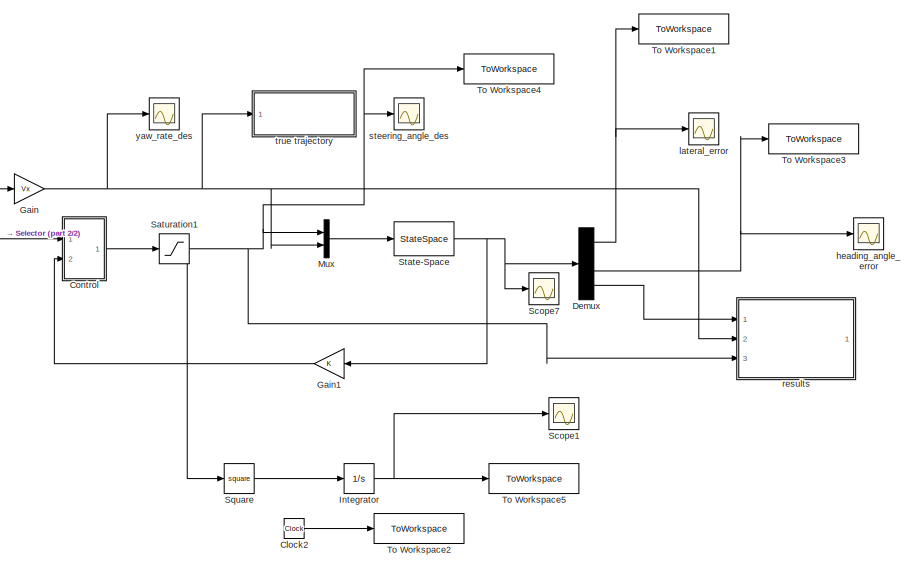
[diagram: root canvas - part 1/2, right side, full height]
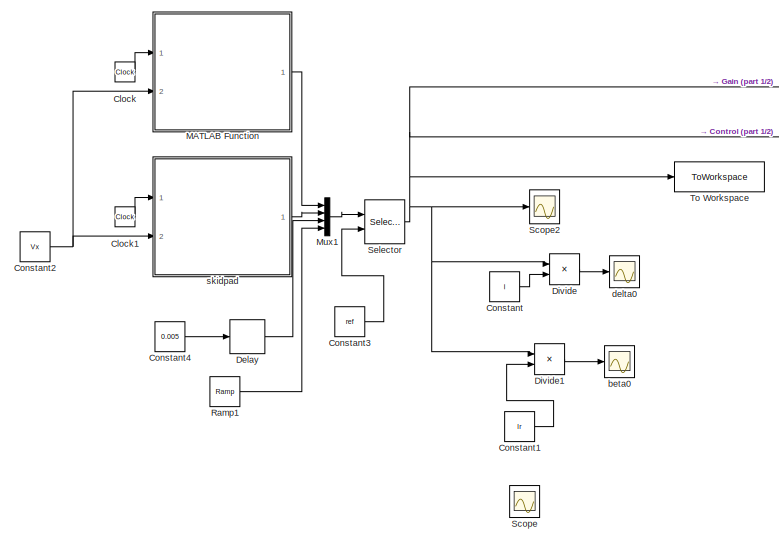
[diagram: root canvas - part 2/2, left side, full height]
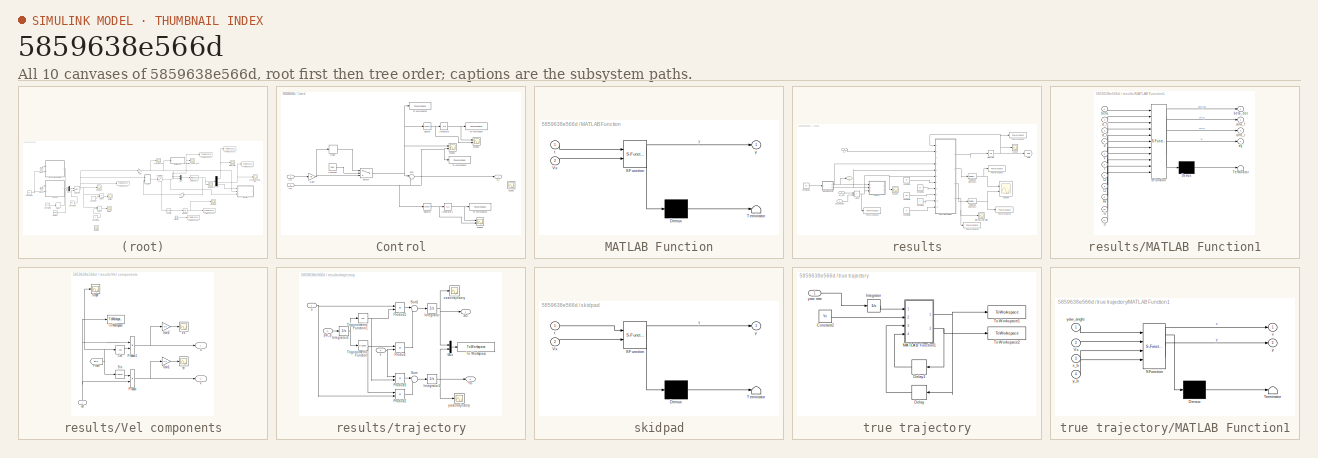
[diagram: thumbnail index - all 10 canvases of the model, root first then tree order]
MODEL slx_5859638e566d
KIND model
CONFIG AbsTol = auto
CONFIG EnableMultiTasking = off
CONFIG FixedStep = 0.001
CONFIG MaxStep = auto
CONFIG MinStep = auto
CONFIG RelTol = 1e-3
CONFIG SampleTimeConstraint = Unconstrained
CONFIG SolverName = ode4
CONFIG StartTime = 0.0
CONFIG StopTime = simtime
BLOCK [Clock] Clock
BLOCK [Clock] Clock1
BLOCK [Clock] Clock2
BLOCK [Constant] Constant
  Value = l
BLOCK [Constant] Constant1
  Value = lr
BLOCK [Constant] Constant2
  Value = Vx
BLOCK [Constant] Constant3
  Value = ref
BLOCK [Constant] Constant4
  Value = 0.005
BLOCK [SubSystem] Control
  Ports = [2, 1]
  RequestExecContextInheritance = off
BLOCK [Constant] Control/Constant
  Value = delay
BLOCK [Delay] Control/Delay
  DelayLength = 10
  InputPortMap = u0
  Ports = [1, 1]
BLOCK [Gain] Control/Gain2
  Gain = Kff
BLOCK [Inport] Control/In1
BLOCK [Inport] Control/In2
  NameLocation = top
  Port = 2
BLOCK [Integrator] Control/Integrator
  Ports = [1, 1]
BLOCK [Integrator] Control/Integrator1
  Ports = [1, 1]
BLOCK [Scope] Control/Scope
  Floating = off
  NumInputPorts = 1
  Ports = [1]
  ScopeSpecificationString = Simulink.scopes.TimeScopeBlockCfg('CurrentConfiguration', extmgr.ConfigurationSet(extmgr.Configuration('Core','General UI',true),extmgr.Configuration('Core','Source UI',true),extmgr.Configuration('Sources','WiredSimulink',true,'DataLoggingVariableName','ScopeData2'),extmgr.Configuration('Visuals','Time Domain',true,'SerializedDisplays',{struct('MinYLimReal','-1.00000','MaxYLimReal','1.00000','YLab...<+1428ch>
BLOCK [Scope] Control/Scope1
  Floating = off
  NumInputPorts = 2
  Ports = [2]
  ScopeSpecificationString = Simulink.scopes.TimeScopeBlockCfg('CurrentConfiguration', extmgr.ConfigurationSet(extmgr.Configuration('Core','General UI',true),extmgr.Configuration('Core','Source UI',true),extmgr.Configuration('Sources','WiredSimulink',true,'DataLoggingVariableName','ScopeData1'),extmgr.Configuration('Visuals','Time Domain',true,'SerializedDisplays',{struct('MinYLimReal','-0.02902','MaxYLimReal','0.02902','YLab...<+1421ch>
BLOCK [Scope] Control/Scope2
  Floating = off
  NumInputPorts = 2
  Ports = [2]
  ScopeSpecificationString = Simulink.scopes.TimeScopeBlockCfg('CurrentConfiguration', extmgr.ConfigurationSet(extmgr.Configuration('Core','General UI',true),extmgr.Configuration('Core','Source UI',true),extmgr.Configuration('Sources','WiredSimulink',true,'DataLoggingVariableName','ScopeData2'),extmgr.Configuration('Visuals','Time Domain',true,'SerializedDisplays',{struct('MinYLimReal','-0.00614','MaxYLimReal','0.05524','YLab...<+1403ch>
BLOCK [Scope] Control/Scope3
  Floating = off
  NumInputPorts = 2
  Ports = [2]
  ScopeSpecificationString = Simulink.scopes.TimeScopeBlockCfg('CurrentConfiguration', extmgr.ConfigurationSet(extmgr.Configuration('Core','General UI',true),extmgr.Configuration('Core','Source UI',true),extmgr.Configuration('Sources','WiredSimulink',true,'DataLoggingVariableName','ScopeData3'),extmgr.Configuration('Visuals','Time Domain',true,'SerializedDisplays',{struct('MinYLimReal','-0.06113','MaxYLimReal','0.55018','YLab...<+1403ch>
BLOCK [Math] Control/Square
  Operator = square
  Ports = [1, 1]
BLOCK [Math] Control/Square1
  Operator = square
  Ports = [1, 1]
BLOCK [Sum] Control/Sum
  Inputs = |+-
  Ports = [2, 1]
BLOCK [Switch] Control/Switch
  Criteria = u2 > Threshold
  InputSameDT = off
  SaturateOnIntegerOverflow = off
BLOCK [ToWorkspace] Control/To Workspace
  FixptAsFi = on
  MaxDataPoints = inf
  Ports = [1]
  SampleTime = -1
  VariableName = fw_e
BLOCK [ToWorkspace] Control/To Workspace1
  FixptAsFi = on
  MaxDataPoints = inf
  Ports = [1]
  SampleTime = -1
  VariableName = feedback
BLOCK [ToWorkspace] Control/To Workspace2
  FixptAsFi = on
  MaxDataPoints = inf
  Ports = [1]
  SampleTime = -1
  VariableName = feedforward
BLOCK [ToWorkspace] Control/To Workspace3
  FixptAsFi = on
  MaxDataPoints = inf
  Ports = [1]
  SampleTime = -1
  VariableName = fb_e
BLOCK [Outport] Control/d_f
BLOCK [Delay] Delay
  DelayLength = 5000
  InputPortMap = u0
  Ports = [1, 1]
BLOCK [Demux] Demux
  NameLocation = right
  Ports = [1, 4]
BLOCK [Product] Divide
  Ports = [2, 1]
BLOCK [Product] Divide1
  Ports = [2, 1]
BLOCK [Gain] Gain
  Gain = Vx
BLOCK [Gain] Gain1
  Gain = K
  Multiplication = Matrix(K*u) (u vector)
BLOCK [Integrator] Integrator
  Ports = [1, 1]
BLOCK [SubSystem] MATLAB Function
  ErrorFcn = Stateflow.Translate.translate
  PermitHierarchicalResolution = ExplicitOnly
  Ports = [2, 1]
  RequestExecContextInheritance = off
  SFBlockType = MATLAB Function
  TreatAsAtomicUnit = on
BLOCK [Demux] MATLAB Function/ Demux 
  Outputs = 1
  Ports = [1, 1]
BLOCK [S-Function] MATLAB Function/ SFunction 
  EnableBusSupport = on
  FunctionName = sf_sfun
  PortCounts = [2 2]
  Ports = [2, 2]
  SFcnIsStateOwnerBlock = off
  SFunctionDeploymentMode = off
  Tag = Stateflow S-Function 2
BLOCK [Terminator] MATLAB Function/ Terminator 
BLOCK [Inport] MATLAB Function/Vx
  Port = 2
BLOCK [Inport] MATLAB Function/t
BLOCK [Outport] MATLAB Function/y
BLOCK [Mux] Mux
  DisplayOption = bar
  Inputs = 2
  Ports = [2, 1]
BLOCK [Mux] Mux1
  DisplayOption = bar
  Ports = [4, 1]
BLOCK [Reference] Ramp1  REF=simulink/Sources/Ramp
  Ports = [0, 1]
  SourceBlock = simulink/Sources/Ramp
  SourceProductBaseCode = SL
  SourceType = Ramp
BLOCK [Saturate] Saturation1
  LowerLimit = -25*pi/180
  UpperLimit = 25*pi/180
BLOCK [Scope] Scope
  Floating = off
  NumInputPorts = 1
  Ports = [1]
  ScopeSpecificationString = Simulink.scopes.TimeScopeBlockCfg('CurrentConfiguration', extmgr.ConfigurationSet(extmgr.Configuration('Core','General UI',true),extmgr.Configuration('Core','Source UI',true),extmgr.Configuration('Sources','WiredSimulink',true,'DataLoggingVariableName','ScopeData2'),extmgr.Configuration('Visuals','Time Domain',true,'SerializedDisplays',{struct('MinYLimReal','-1.00000','MaxYLimReal','1.00000','YLab...<+1509ch>
BLOCK [Scope] Scope1
  Floating = off
  NumInputPorts = 1
  Ports = [1]
  ScopeSpecificationString = Simulink.scopes.TimeScopeBlockCfg('CurrentConfiguration', extmgr.ConfigurationSet(extmgr.Configuration('Core','General UI',true),extmgr.Configuration('Core','Source UI',true),extmgr.Configuration('Sources','WiredSimulink',true,'DataLoggingVariableName','ScopeData1'),extmgr.Configuration('Visuals','Time Domain',true,'SerializedDisplays',{struct('MinYLimReal','-0.00024','MaxYLimReal','0.00214','YLab...<+1394ch>
BLOCK [Scope] Scope2
  Floating = off
  NumInputPorts = 1
  Ports = [1]
  ScopeSpecificationString = Simulink.scopes.TimeScopeBlockCfg('CurrentConfiguration', extmgr.ConfigurationSet(extmgr.Configuration('Core','General UI',true),extmgr.Configuration('Core','Source UI',true),extmgr.Configuration('Sources','WiredSimulink',true,'DataLoggingVariableName','ScopeData2'),extmgr.Configuration('Visuals','Time Domain',true,'SerializedDisplays',{struct('MinYLimReal','-0.00675','MaxYLimReal','0.06075','YLab...<+1557ch>
BLOCK [Scope] Scope7
  Floating = off
  NumInputPorts = 1
  Ports = [1]
  ScopeSpecificationString = Simulink.scopes.TimeScopeBlockCfg('CurrentConfiguration', extmgr.ConfigurationSet(extmgr.Configuration('Core','General UI',true),extmgr.Configuration('Core','Source UI',true),extmgr.Configuration('Sources','WiredSimulink',true,'DataLoggingVariableName','ScopeData7'),extmgr.Configuration('Visuals','Time Domain',true,'SerializedDisplays',{struct('MinYLimReal','-13.77546','MaxYLimReal','13.77545','YL...<+1588ch>
BLOCK [Selector] Selector
  IndexOptions = Index vector (port)
  Indices = 1
  InputPortWidth = 4
  OutputSizes = 1
  Ports = [2, 1]
BLOCK [Math] Square
  Operator = square
  Ports = [1, 1]
BLOCK [StateSpace] State-Space
  A = A
  B = B
  C = C
  D = D
  InitialCondition = x0
  Ports = [1, 1]
BLOCK [ToWorkspace] To Workspace
  FixptAsFi = on
  MaxDataPoints = inf
  Ports = [1]
  SampleTime = -1
  VariableName = trajectory
BLOCK [ToWorkspace] To Workspace1
  FixptAsFi = on
  MaxDataPoints = inf
  Ports = [1]
  SampleTime = -1
  VariableName = lateral_deviation
BLOCK [ToWorkspace] To Workspace2
  FixptAsFi = on
  MaxDataPoints = inf
  Ports = [1]
  SampleTime = -1
  VariableName = time
BLOCK [ToWorkspace] To Workspace3
  FixptAsFi = on
  MaxDataPoints = inf
  Ports = [1]
  SampleTime = -1
  VariableName = heading_angle_error
BLOCK [ToWorkspace] To Workspace4
  FixptAsFi = on
  MaxDataPoints = inf
  Ports = [1]
  SampleTime = -1
  VariableName = delta_des
BLOCK [ToWorkspace] To Workspace5
  FixptAsFi = on
  MaxDataPoints = inf
  Ports = [1]
  SampleTime = -1
  VariableName = energy
BLOCK [Scope] beta0
  Floating = off
  NumInputPorts = 1
  Ports = [1]
  ScopeSpecificationString = Simulink.scopes.TimeScopeBlockCfg('CurrentConfiguration', extmgr.ConfigurationSet(extmgr.Configuration('Core','General UI',true),extmgr.Configuration('Core','Source UI',true),extmgr.Configuration('Sources','WiredSimulink',true,'DataLoggingVariableName','ScopeData3'),extmgr.Configuration('Visuals','Time Domain',true,'SerializedDisplays',{struct('MinYLimReal','-0.00375','MaxYLimReal','0.00375','YLab...<+1391ch>
BLOCK [Scope] delta0
  Floating = off
  NumInputPorts = 1
  Ports = [1]
  ScopeSpecificationString = Simulink.scopes.TimeScopeBlockCfg('CurrentConfiguration', extmgr.ConfigurationSet(extmgr.Configuration('Core','General UI',true),extmgr.Configuration('Core','Source UI',true),extmgr.Configuration('Sources','WiredSimulink',true,'DataLoggingVariableName','ScopeData2'),extmgr.Configuration('Visuals','Time Domain',true,'SerializedDisplays',{struct('MinYLimReal','-0.007','MaxYLimReal','0.007','YLabelRe...<+1353ch>
BLOCK [Scope] heading_angle_error
  Floating = off
  NumInputPorts = 1
  Ports = [1]
  ScopeSpecificationString = Simulink.scopes.TimeScopeBlockCfg('CurrentConfiguration', extmgr.ConfigurationSet(extmgr.Configuration('Core','General UI',true),extmgr.Configuration('Core','Source UI',true),extmgr.Configuration('Sources','WiredSimulink',true,'DataLoggingVariableName','ScopeData4'),extmgr.Configuration('Visuals','Time Domain',true,'SerializedDisplays',{struct('MinYLimReal','-0.00419','MaxYLimReal','0.00419','YLab...<+1391ch>
BLOCK [Scope] lateral_error
  Floating = off
  NumInputPorts = 1
  Ports = [1]
  ScopeSpecificationString = Simulink.scopes.TimeScopeBlockCfg('CurrentConfiguration', extmgr.ConfigurationSet(extmgr.Configuration('Core','General UI',true),extmgr.Configuration('Core','Source UI',true),extmgr.Configuration('Sources','WiredSimulink',true,'DataLoggingVariableName','ScopeData3'),extmgr.Configuration('Visuals','Time Domain',true,'SerializedDisplays',{struct('MinYLimReal','-0.000047','MaxYLimReal','0.000047','YL...<+1426ch>
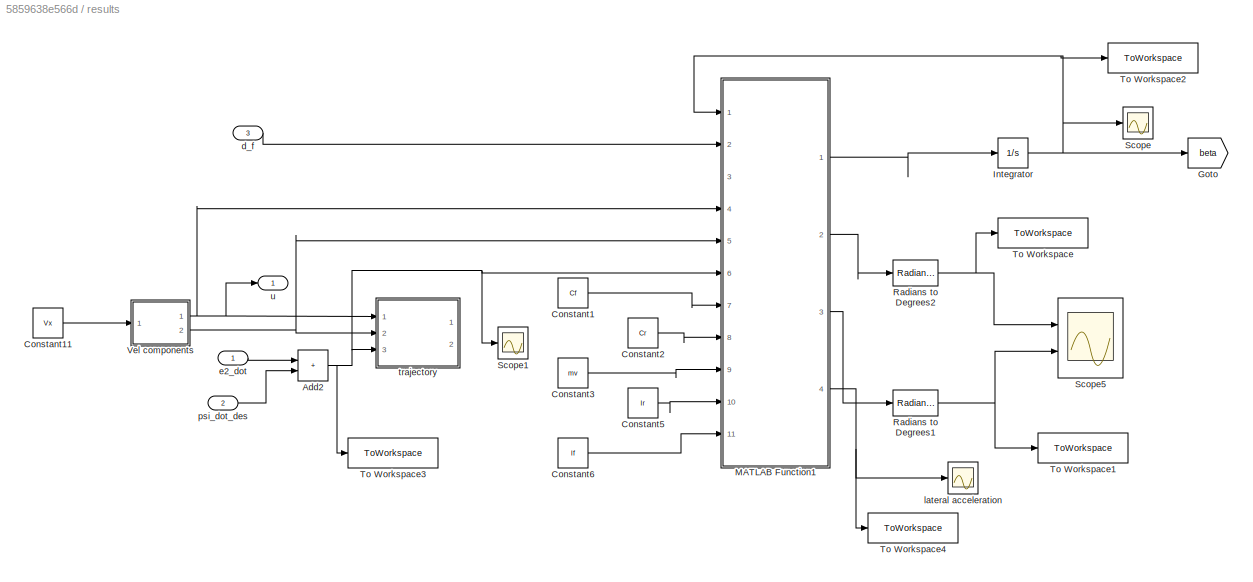
BLOCK [SubSystem] results
  Ports = [3, 1]
  RequestExecContextInheritance = off
BLOCK [Sum] results/Add2
  IconShape = rectangular
  Ports = [2, 1]
BLOCK [Constant] results/Constant1
  Value = Cf
BLOCK [Constant] results/Constant11
  Value = Vx
BLOCK [Constant] results/Constant2
  Value = Cr
BLOCK [Constant] results/Constant3
  Value = mv
BLOCK [Constant] results/Constant5
  Value = lr
BLOCK [Constant] results/Constant6
  Value = lf
BLOCK [Goto] results/Goto
  GotoTag = beta
  TagVisibility = global
BLOCK [Integrator] results/Integrator
  Ports = [1, 1]
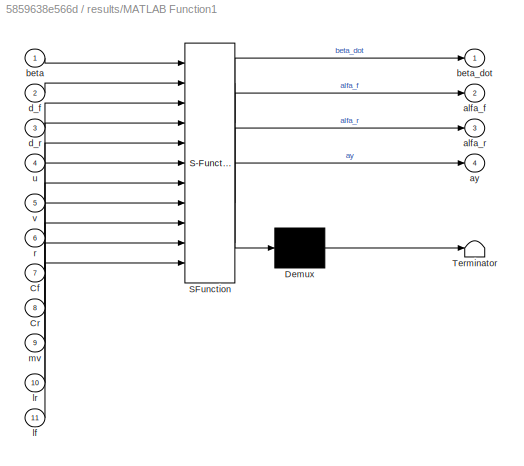
BLOCK [SubSystem] results/MATLAB Function1
  ErrorFcn = Stateflow.Translate.translate
  PermitHierarchicalResolution = ExplicitOnly
  Ports = [11, 4]
  RequestExecContextInheritance = off
  SFBlockType = MATLAB Function
  TreatAsAtomicUnit = on
BLOCK [Demux] results/MATLAB Function1/ Demux 
  Outputs = 1
  Ports = [1, 1]
BLOCK [S-Function] results/MATLAB Function1/ SFunction 
  EnableBusSupport = on
  FunctionName = sf_sfun
  PortCounts = [11 5]
  Ports = [11, 5]
  SFcnIsStateOwnerBlock = off
  SFunctionDeploymentMode = off
  Tag = Stateflow S-Function 1
BLOCK [Terminator] results/MATLAB Function1/ Terminator 
BLOCK [Inport] results/MATLAB Function1/Cf
  Port = 7
BLOCK [Inport] results/MATLAB Function1/Cr
  Port = 8
BLOCK [Outport] results/MATLAB Function1/alfa_f
  Port = 2
BLOCK [Outport] results/MATLAB Function1/alfa_r
  Port = 3
BLOCK [Outport] results/MATLAB Function1/ay
  Port = 4
BLOCK [Inport] results/MATLAB Function1/beta
BLOCK [Outport] results/MATLAB Function1/beta_dot
BLOCK [Inport] results/MATLAB Function1/d_f
  Port = 2
BLOCK [Inport] results/MATLAB Function1/d_r
  Port = 3
BLOCK [Inport] results/MATLAB Function1/lf
  Port = 11
BLOCK [Inport] results/MATLAB Function1/lr
  Port = 10
BLOCK [Inport] results/MATLAB Function1/mv
  Port = 9
BLOCK [Inport] results/MATLAB Function1/r
  Port = 6
BLOCK [Inport] results/MATLAB Function1/u
  Port = 4
BLOCK [Inport] results/MATLAB Function1/v
  Port = 5
BLOCK [Reference] results/Radians to Degrees1  REF=simulink_extras/Transformations/Radians
to Degrees
  Ports = [1, 1]
  SourceBlock = simulink_extras/Transformations/Radians\nto Degrees
  SourceProductBaseCode = SL
  SourceType = RadiansToDegrees
BLOCK [Reference] results/Radians to Degrees2  REF=simulink_extras/Transformations/Radians
to Degrees
  Ports = [1, 1]
  SourceBlock = simulink_extras/Transformations/Radians\nto Degrees
  SourceProductBaseCode = SL
  SourceType = RadiansToDegrees
BLOCK [Scope] results/Scope
  Floating = off
  NumInputPorts = 1
  Ports = [1]
  ScopeSpecificationString = Simulink.scopes.TimeScopeBlockCfg('CurrentConfiguration', extmgr.ConfigurationSet(extmgr.Configuration('Core','General UI',true),extmgr.Configuration('Core','Source UI',true),extmgr.Configuration('Sources','WiredSimulink',true,'DataLoggingVariableName','ScopeData1'),extmgr.Configuration('Visuals','Time Domain',true,'SerializedDisplays',{struct('MinYLimReal','-0.10035','MaxYLimReal','0.01115','YLab...<+1441ch>
BLOCK [Scope] results/Scope1
  Floating = off
  NumInputPorts = 1
  Ports = [1]
  ScopeSpecificationString = Simulink.scopes.TimeScopeBlockCfg('CurrentConfiguration', extmgr.ConfigurationSet(extmgr.Configuration('Core','General UI',true),extmgr.Configuration('Core','Source UI',true),extmgr.Configuration('Sources','WiredSimulink',true,'DataLoggingVariableName','ScopeData1'),extmgr.Configuration('Visuals','Time Domain',true,'SerializedDisplays',{struct('MinYLimReal','-1.70615','MaxYLimReal','1.70538','YLab...<+1396ch>
BLOCK [Scope] results/Scope5
  Floating = off
  NumInputPorts = 2
  Ports = [2]
  ScopeSpecificationString = Simulink.scopes.TimeScopeBlockCfg('CurrentConfiguration', extmgr.ConfigurationSet(extmgr.Configuration('Core','General UI',true),extmgr.Configuration('Core','Source UI',true),extmgr.Configuration('Sources','WiredSimulink',true,'DataLoggingVariableName','ScopeData2'),extmgr.Configuration('Visuals','Time Domain',true,'SerializedDisplays',{struct('MinYLimReal','-1.3357','MaxYLimReal','12.02131','YLab...<+1517ch>
BLOCK [ToWorkspace] results/To Workspace
  FixptAsFi = on
  MaxDataPoints = inf
  Ports = [1]
  SampleTime = -1
  VariableName = alfa_front
BLOCK [ToWorkspace] results/To Workspace1
  FixptAsFi = on
  MaxDataPoints = inf
  Ports = [1]
  SampleTime = -1
  VariableName = alfa_rear
BLOCK [ToWorkspace] results/To Workspace2
  FixptAsFi = on
  MaxDataPoints = inf
  Ports = [1]
  SampleTime = -1
  VariableName = beta
BLOCK [ToWorkspace] results/To Workspace3
  FixptAsFi = on
  MaxDataPoints = inf
  Ports = [1]
  SampleTime = -1
  VariableName = yaw_rate
BLOCK [ToWorkspace] results/To Workspace4
  FixptAsFi = on
  MaxDataPoints = inf
  Ports = [1]
  SampleTime = -1
  VariableName = lateral_acceleration
BLOCK [SubSystem] results/Vel components
  Ports = [1, 2]
  RequestExecContextInheritance = off
BLOCK [Trigonometry] results/Vel components/Cos
  Operator = cos
  Ports = [1, 1]
BLOCK [From] results/Vel components/From
  GotoTag = beta
  TagVisibility = global
BLOCK [Gain] results/Vel components/Gain1
  Gain = 3.6
BLOCK [Gain] results/Vel components/Gain2
  Gain = 3.6
BLOCK [Product] results/Vel components/Product
  Ports = [2, 1]
BLOCK [Product] results/Vel components/Product1
  Ports = [2, 1]
BLOCK [Scope] results/Vel components/Scope
  Floating = off
  NumInputPorts = 1
  Ports = [1]
  ScopeSpecificationString = Simulink.scopes.TimeScopeBlockCfg('CurrentConfiguration', extmgr.ConfigurationSet(extmgr.Configuration('Core','General UI',true),extmgr.Configuration('Core','Source UI',true),extmgr.Configuration('Sources','WiredSimulink',true,'DataLoggingVariableName','ScopeData2'),extmgr.Configuration('Visuals','Time Domain',true,'SerializedDisplays',{struct('MinYLimReal','-0.00234','MaxYLimReal','0.0211','YLabe...<+1509ch>
BLOCK [Trigonometry] results/Vel components/Sin
  Ports = [1, 1]
BLOCK [ToWorkspace] results/Vel components/To Workspace
  FixptAsFi = on
  MaxDataPoints = inf
  Ports = [1]
  SampleTime = -1
  SaveFormat = Timeseries
  VariableName = simout
BLOCK [Scope] results/Vel components/Vx
  Floating = off
  NumInputPorts = 1
  Ports = [1]
  ScopeSpecificationString = Simulink.scopes.TimeScopeBlockCfg('CurrentConfiguration', extmgr.ConfigurationSet(extmgr.Configuration('Core','General UI',true),extmgr.Configuration('Core','Source UI',true),extmgr.Configuration('Sources','WiredSimulink',true,'DataLoggingVariableName','ScopeData3'),extmgr.Configuration('Visuals','Time Domain',true,'SerializedDisplays',{struct('MinYLimReal','49.99011','MaxYLimReal','50.0011','YLab...<+1541ch>
BLOCK [Outport] results/Vel components/u
  VectorParamsAs1DForOutWhenUnconnected = off
BLOCK [Outport] results/Vel components/v
  Port = 2
  VectorParamsAs1DForOutWhenUnconnected = off
BLOCK [Inport] results/Vel components/vel
  NameLocation = right
BLOCK [Scope] results/Vel components/vy
  Floating = off
  NumInputPorts = 1
  Ports = [1]
  ScopeSpecificationString = Simulink.scopes.TimeScopeBlockCfg('CurrentConfiguration', extmgr.ConfigurationSet(extmgr.Configuration('Core','General UI',true),extmgr.Configuration('Core','Source UI',true),extmgr.Configuration('Sources','WiredSimulink',true,'DataLoggingVariableName','v','DataLogging',true,'DataLoggingSaveFormat','Array'),extmgr.Configuration('Visuals','Time Domain',true,'SerializedDisplays',{struct('MinYLimReal...<+1435ch>
BLOCK [Inport] results/d_f
  Port = 3
BLOCK [Inport] results/e2_dot
BLOCK [Scope] results/lateral acceleration
  Floating = off
  NumInputPorts = 1
  Ports = [1]
  ScopeSpecificationString = Simulink.scopes.TimeScopeBlockCfg('CurrentConfiguration', extmgr.ConfigurationSet(extmgr.Configuration('Core','General UI',true),extmgr.Configuration('Core','Source UI',true),extmgr.Configuration('Sources','WiredSimulink',true,'DataLoggingVariableName','ScopeData4'),extmgr.Configuration('Visuals','Time Domain',true,'SerializedDisplays',{struct('MinYLimReal','-0.16727','MaxYLimReal','0.16731','YLab...<+1403ch>
BLOCK [Inport] results/psi_dot_des
  Port = 2
BLOCK [SubSystem] results/trajectory
  Ports = [3, 2]
  RequestExecContextInheritance = off
BLOCK [Integrator] results/trajectory/Integrator
  Ports = [1, 1]
BLOCK [Integrator] results/trajectory/Integrator1
  Ports = [1, 1]
BLOCK [Integrator] results/trajectory/Integrator2
  Ports = [1, 1]
BLOCK [Mux] results/trajectory/Mux
  DisplayOption = bar
  Inputs = 2
  Ports = [2, 1]
BLOCK [Product] results/trajectory/Product
  InputSameDT = on
  OutDataTypeStr = Inherit: Same as first input
  Ports = [2, 1]
  SaturateOnIntegerOverflow = on
BLOCK [Product] results/trajectory/Product1
  InputSameDT = on
  OutDataTypeStr = Inherit: Same as first input
  Ports = [2, 1]
  SaturateOnIntegerOverflow = on
BLOCK [Product] results/trajectory/Product2
  InputSameDT = on
  OutDataTypeStr = Inherit: Same as first input
  Ports = [2, 1]
  SaturateOnIntegerOverflow = on
BLOCK [Product] results/trajectory/Product3
  InputSameDT = on
  OutDataTypeStr = Inherit: Same as first input
  Ports = [2, 1]
  SaturateOnIntegerOverflow = on
BLOCK [Sum] results/trajectory/Sum
  InputSameDT = on
  Inputs = |++
  OutDataTypeStr = Inherit: Same as first input
  Ports = [2, 1]
  SaturateOnIntegerOverflow = on
BLOCK [Sum] results/trajectory/Sum1
  InputSameDT = on
  Inputs = |+-
  OutDataTypeStr = Inherit: Same as first input
  Ports = [2, 1]
  SaturateOnIntegerOverflow = on
BLOCK [ToWorkspace] results/trajectory/To Workspace
  InitFcn = ParentName = get_param(gcb,'Parent');                                              \ncont = max(find(ParentName=='/'));                                                 \nset_param(gcb,'VariableName',strcat('Var_',ParentName(cont+1:length(ParentName))));\nclear ParentName cont
  MaxDataPoints = inf
  Ports = [1]
  SampleTime = -1
  Save2DSignal = 2-D array (concatenate along first dimension)
  VariableName = Var_trajectory
BLOCK [Trigonometry] results/trajectory/Trigonometric Function
  Ports = [1, 1]
BLOCK [Trigonometry] results/trajectory/Trigonometric Function1
  Operator = cos
  Ports = [1, 1]
BLOCK [Outport] results/trajectory/XG
  VectorParamsAs1DForOutWhenUnconnected = off
BLOCK [Outport] results/trajectory/YG
  Port = 2
  VectorParamsAs1DForOutWhenUnconnected = off
BLOCK [Inport] results/trajectory/psi_p
  Port = 3
BLOCK [Inport] results/trajectory/u
BLOCK [Inport] results/trajectory/v
  Port = 2
BLOCK [Scope] results/trajectory/x axis trajectory
  Floating = off
  NumInputPorts = 1
  Ports = [1]
  ScopeSpecificationString = Simulink.scopes.TimeScopeBlockCfg('CurrentConfiguration', extmgr.ConfigurationSet(extmgr.Configuration('Core','General UI',true),extmgr.Configuration('Core','Source UI',true),extmgr.Configuration('Sources','WiredSimulink',true,'DataLoggingVariableName','x_traiettoria','DataLoggingSaveFormat','Array','DataLoggingDecimation','1','DataLoggingDecimateData',true),extmgr.Configuration('Visuals','Time Do...<+1773ch>
BLOCK [Scope] results/trajectory/y axis trajectory
  Floating = off
  NumInputPorts = 1
  Ports = [1]
  ScopeSpecificationString = Simulink.scopes.TimeScopeBlockCfg('CurrentConfiguration', extmgr.ConfigurationSet(extmgr.Configuration('Core','General UI',true),extmgr.Configuration('Core','Source UI',true),extmgr.Configuration('Sources','WiredSimulink',true,'DataLoggingVariableName','y_traiettoria','DataLoggingSaveFormat','Array','DataLoggingDecimation','1','DataLoggingDecimateData',true),extmgr.Configuration('Visuals','Time Do...<+1669ch>
BLOCK [Outport] results/u
BLOCK [SubSystem] skidpad
  ErrorFcn = Stateflow.Translate.translate
  PermitHierarchicalResolution = ExplicitOnly
  Ports = [2, 1]
  RequestExecContextInheritance = off
  SFBlockType = MATLAB Function
  TreatAsAtomicUnit = on
BLOCK [Demux] skidpad/ Demux 
  Outputs = 1
  Ports = [1, 1]
BLOCK [S-Function] skidpad/ SFunction 
  EnableBusSupport = on
  FunctionName = sf_sfun
  PortCounts = [2 2]
  Ports = [2, 2]
  SFcnIsStateOwnerBlock = off
  SFunctionDeploymentMode = off
  Tag = Stateflow S-Function 4
BLOCK [Terminator] skidpad/ Terminator 
BLOCK [Inport] skidpad/Vx
  Port = 2
BLOCK [Inport] skidpad/t
BLOCK [Outport] skidpad/y
BLOCK [Scope] steering_angle_des
  Floating = off
  NumInputPorts = 1
  Ports = [1]
  ScopeSpecificationString = Simulink.scopes.TimeScopeBlockCfg('CurrentConfiguration', extmgr.ConfigurationSet(extmgr.Configuration('Core','General UI',true),extmgr.Configuration('Core','Source UI',true),extmgr.Configuration('Sources','WiredSimulink',true,'DataLoggingVariableName','ScopeData1'),extmgr.Configuration('Visuals','Time Domain',true,'SerializedDisplays',{struct('MinYLimReal','-0.05454','MaxYLimReal','0.49087','YLab...<+1445ch>
BLOCK [SubSystem] true trajectory
  Ports = [1]
  RequestExecContextInheritance = off
BLOCK [Constant] true trajectory/Constant2
  Value = Vx
BLOCK [Delay] true trajectory/Delay
  DelayLength = 1
  InputPortMap = u0
  Ports = [1, 1]
BLOCK [Delay] true trajectory/Delay1
  DelayLength = 1
  InputPortMap = u0
  Ports = [1, 1]
BLOCK [Integrator] true trajectory/Integrator
  Ports = [1, 1]
BLOCK [SubSystem] true trajectory/MATLAB Function1
  ErrorFcn = Stateflow.Translate.translate
  PermitHierarchicalResolution = ExplicitOnly
  Ports = [4, 2]
  RequestExecContextInheritance = off
  SFBlockType = MATLAB Function
  TreatAsAtomicUnit = on
BLOCK [Demux] true trajectory/MATLAB Function1/ Demux 
  Outputs = 1
  Ports = [1, 1]
BLOCK [S-Function] true trajectory/MATLAB Function1/ SFunction 
  EnableBusSupport = on
  FunctionName = sf_sfun
  PortCounts = [4 3]
  Ports = [4, 3]
  SFcnIsStateOwnerBlock = off
  SFunctionDeploymentMode = off
  Tag = Stateflow S-Function 3
BLOCK [Terminator] true trajectory/MATLAB Function1/ Terminator 
BLOCK [Inport] true trajectory/MATLAB Function1/Vx
  Port = 2
BLOCK [Outport] true trajectory/MATLAB Function1/x
BLOCK [Inport] true trajectory/MATLAB Function1/x_b
  Port = 3
BLOCK [Outport] true trajectory/MATLAB Function1/y
  Port = 2
BLOCK [Inport] true trajectory/MATLAB Function1/y_b
  Port = 4
BLOCK [Inport] true trajectory/MATLAB Function1/yaw_angle
BLOCK [ToWorkspace] true trajectory/To Workspace1
  FixptAsFi = on
  MaxDataPoints = inf
  Ports = [1]
  SampleTime = -1
  VariableName = x
BLOCK [ToWorkspace] true trajectory/To Workspace2
  FixptAsFi = on
  MaxDataPoints = inf
  Ports = [1]
  SampleTime = -1
  VariableName = y
BLOCK [Inport] true trajectory/yaw rate
BLOCK [Scope] yaw_rate_des
  Floating = off
  NumInputPorts = 1
  Ports = [1]
  ScopeSpecificationString = Simulink.scopes.TimeScopeBlockCfg('CurrentConfiguration', extmgr.ConfigurationSet(extmgr.Configuration('Core','General UI',true),extmgr.Configuration('Core','Source UI',true),extmgr.Configuration('Sources','WiredSimulink',true,'DataLoggingVariableName','ScopeData2'),extmgr.Configuration('Visuals','Time Domain',true,'SerializedDisplays',{struct('MinYLimReal','-0.09028','MaxYLimReal','0.09028','YLab...<+1507ch>
LINE Clock1:1 -> skidpad:1
LINE Clock2:1 -> To Workspace2:1
LINE Clock:1 -> MATLAB Function:1
LINE Constant1:1 -> Divide1:2
NET Constant2:1 -> MATLAB Function:2, skidpad:2
LINE Constant3:1 -> Selector:2
LINE Constant4:1 -> Delay:1
LINE Constant:1 -> Divide:2
LINE Control/Constant:1 -> Control/Switch:2
LINE Control/Delay:1 -> Control/Switch:1
NET Control/Gain2:1 -> Control/Delay:1, Control/Switch:3
LINE Control/In1:1 -> Control/Gain2:1
NET Control/In2:1 -> Control/Scope1:2, Control/Square1:1, Control/Sum:2, Control/To Workspace1:1
NET Control/Integrator1:1 -> Control/Scope3:1, Control/To Workspace3:1
NET Control/Integrator:1 -> Control/Scope2:1, Control/To Workspace:1
NET Control/Square1:1 -> Control/Integrator1:1, Control/Scope3:2
NET Control/Square:1 -> Control/Integrator:1, Control/Scope2:2
LINE Control/Sum:1 -> Control/d_f:1
NET Control/Switch:1 -> Control/Scope1:1, Control/Square:1, Control/Sum:1, Control/To Workspace2:1
LINE Control:1 -> Saturation1:1
LINE Delay:1 -> Mux1:3
NET Demux:1 -> To Workspace1:1, lateral_error:1
NET Demux:3 -> To Workspace3:1, heading_angle_error:1
LINE Demux:4 -> results:1
LINE Divide1:1 -> beta0:1
LINE Divide:1 -> delta0:1
LINE Gain1:1 -> Control:2
NET Gain:1 -> Mux:2, results:2, true trajectory:1, yaw_rate_des:1
NET Integrator:1 -> Scope1:1, To Workspace5:1
LINE MATLAB Function:1 -> Mux1:1
LINE Mux1:1 -> Selector:1
LINE Mux:1 -> State-Space:1
LINE Ramp1:1 -> Mux1:4
NET Saturation1:1 -> Mux:1, Square:1, To Workspace4:1, results:3, steering_angle_des:1
NET Selector:1 -> Control:1, Divide1:1, Divide:1, Gain:1, Scope2:1, To Workspace:1
LINE Square:1 -> Integrator:1
NET State-Space:1 -> Demux:1, Gain1:1, Scope7:1
NET results/Add2:1 -> results/MATLAB Function1:6, results/Scope1:1, results/To Workspace3:1, results/trajectory:3
LINE results/Constant11:1 -> results/Vel components:1
LINE results/Constant1:1 -> results/MATLAB Function1:7
LINE results/Constant2:1 -> results/MATLAB Function1:8
LINE results/Constant3:1 -> results/MATLAB Function1:9
LINE results/Constant5:1 -> results/MATLAB Function1:10
LINE results/Constant6:1 -> results/MATLAB Function1:11
NET results/Integrator:1 -> results/Goto:1, results/MATLAB Function1:1, results/Scope:1, results/To Workspace2:1
LINE results/MATLAB Function1:1 -> results/Integrator:1
LINE results/MATLAB Function1:2 -> results/Radians to Degrees2:1
LINE results/MATLAB Function1:3 -> results/Radians to Degrees1:1
NET results/MATLAB Function1:4 -> results/To Workspace4:1, results/lateral acceleration:1
NET results/Radians to Degrees1:1 -> results/Scope5:2, results/To Workspace1:1
NET results/Radians to Degrees2:1 -> results/Scope5:1, results/To Workspace:1
LINE results/Vel components/Cos:1 -> results/Vel components/Product1:2
NET results/Vel components/From:1 -> results/Vel components/Cos:1, results/Vel components/Scope:1, results/Vel components/Sin:1
LINE results/Vel components/Gain1:1 -> results/Vel components/vy:1
LINE results/Vel components/Gain2:1 -> results/Vel components/Vx:1
NET results/Vel components/Product1:1 -> results/Vel components/Gain2:1, results/Vel components/u:1
NET results/Vel components/Product:1 -> results/Vel components/Gain1:1, results/Vel components/v:1
LINE results/Vel components/Sin:1 -> results/Vel components/Product:1
NET results/Vel components/vel:1 -> results/Vel components/Product1:1, results/Vel components/Product:2, results/Vel components/To Workspace:1
NET results/Vel components:1 -> results/MATLAB Function1:4, results/trajectory:1, results/u:1
NET results/Vel components:2 -> results/MATLAB Function1:5, results/trajectory:2
LINE results/d_f:1 -> results/MATLAB Function1:2
LINE results/e2_dot:1 -> results/Add2:1
LINE results/psi_dot_des:1 -> results/Add2:2
NET results/trajectory/Integrator1:1 -> results/trajectory/Mux:2, results/trajectory/YG:1, results/trajectory/y axis trajectory:1
NET results/trajectory/Integrator2:1 -> results/trajectory/Trigonometric Function1:1, results/trajectory/Trigonometric Function:1
NET results/trajectory/Integrator:1 -> results/trajectory/Mux:1, results/trajectory/XG:1, results/trajectory/x axis trajectory:1
LINE results/trajectory/Mux:1 -> results/trajectory/To Workspace:1
LINE results/trajectory/Product1:1 -> results/trajectory/Sum1:1
LINE results/trajectory/Product2:1 -> results/trajectory/Sum:2
LINE results/trajectory/Product3:1 -> results/trajectory/Sum:1
LINE results/trajectory/Product:1 -> results/trajectory/Sum1:2
LINE results/trajectory/Sum1:1 -> results/trajectory/Integrator:1
LINE results/trajectory/Sum:1 -> results/trajectory/Integrator1:1
NET results/trajectory/Trigonometric Function1:1 -> results/trajectory/Product1:2, results/trajectory/Product3:2
NET results/trajectory/Trigonometric Function:1 -> results/trajectory/Product2:1, results/trajectory/Product:1
LINE results/trajectory/psi_p:1 -> results/trajectory/Integrator2:1
NET results/trajectory/u:1 -> results/trajectory/Product1:1, results/trajectory/Product2:2
NET results/trajectory/v:1 -> results/trajectory/Product3:1, results/trajectory/Product:2
LINE skidpad:1 -> Mux1:2
LINE true trajectory/Constant2:1 -> true trajectory/MATLAB Function1:2
LINE true trajectory/Delay1:1 -> true trajectory/MATLAB Function1:4
LINE true trajectory/Delay:1 -> true trajectory/MATLAB Function1:3
LINE true trajectory/Integrator:1 -> true trajectory/MATLAB Function1:1
NET true trajectory/MATLAB Function1:1 -> true trajectory/Delay:1, true trajectory/To Workspace1:1
NET true trajectory/MATLAB Function1:2 -> true trajectory/Delay1:1, true trajectory/To Workspace2:1
LINE true trajectory/yaw rate:1 -> true trajectory/Integrator:1
note: NET lines group one-source signal fan-out (src -> all destinations, sorted); 1:1 wires keep LINE
CHART results/MATLAB Function1 states=1 transitions=1
  STATE_LABEL 'eML_blk_kernel()'
  STATE_LABEL 'SCRIPT:\nfunction [beta_dot, alfa_f, alfa_r, ay] = fcn(beta,d_f,d_r,u,v,r,Cf,Cr,mv,lr,lf)\nl = lr+lf; % total wheelbase\n\nbeta_dot = (-Cf - Cr)/(mv*u)*beta + (-Cf*lf + Cr*lr - mv*u^2)/(mv*u^2)*r + (Cf*d_f - Cr*d_r)/(mv*u);\nalfa_f = -beta - (lf*r)/u + d_f;\nalfa_r = - beta + (lr*r)/u + d_r;\n%ay = -(Cf+Cr)/(mv*u)*v+(Cr*lr-Cf*lf-mv*u^2)/(mv*u)*r+Cf*d_f/mv;\nay = u*r;'
CHART MATLAB Function states=1 transitions=1
  STATE_LABEL 'eML_blk_kernel()'
  STATE_LABEL 'SCRIPT:\nfunction y = fcn(t, Vx)\ny = 0;\nlow = 0.002;\n\ncoeff=(80/3.6)/Vx;\nt1=27*coeff;\nif t <= t1\n    y = 0;\nend\nif t >= t1\n    y=(t-t1)*low/-(10*coeff);\nend\nt2=t1+(10*coeff);\nif t >= t2\n    y = -low;\nend\nt3=t2+(27*coeff);\nif t >= t3\n    y= (t-t3-(10*coeff))*low/(10*coeff);\nend\nt4=t3+(10*coeff);\nif t >= t4\n    y = 0;\nend\nt5=t4+(56*coeff);\nif t >= t5\n    y = (t5-t)*low/-(10*coeff);\nend\nt6=t5+(10*coef...<+141ch>'
CHART true trajectory/MATLAB Function1 states=1 transitions=1
  STATE_LABEL 'eML_blk_kernel()'
  STATE_LABEL 'SCRIPT:\nfunction [x,y] = fcn(yaw_angle,Vx,x_b,y_b)\ndt=0.001;\n\nx=x_b+Vx*cos(yaw_angle)*dt;\ny=y_b+Vx*sin(yaw_angle)*dt;'
CHART skidpad states=1 transitions=1
  STATE_LABEL 'eML_blk_kernel()'
  STATE_LABEL 'SCRIPT:\nfunction y = fcn(t, Vx)\ny = 0;\nc=1000;\ncirc=(80/3.6)*60;\nr=circ/(2*pi*2); %il secondo 2 è perché deve fare due giri\nkl=1/r;\n\nt1=((80/3.6)*10)/Vx;\nif t <= t1\n    y = 0;\nend\nt2=circ/Vx;\nif t >= t1\n    y = -kl;\nend\nif t >= t1+t2\n    y = kl;\nend\nif t >= t1+2*t2\n    y=0;\nend\n'
CHART  states=0 transitions=0
CHART  states=0 transitions=0
CHART  states=0 transitions=0
CHART  states=0 transitions=0
